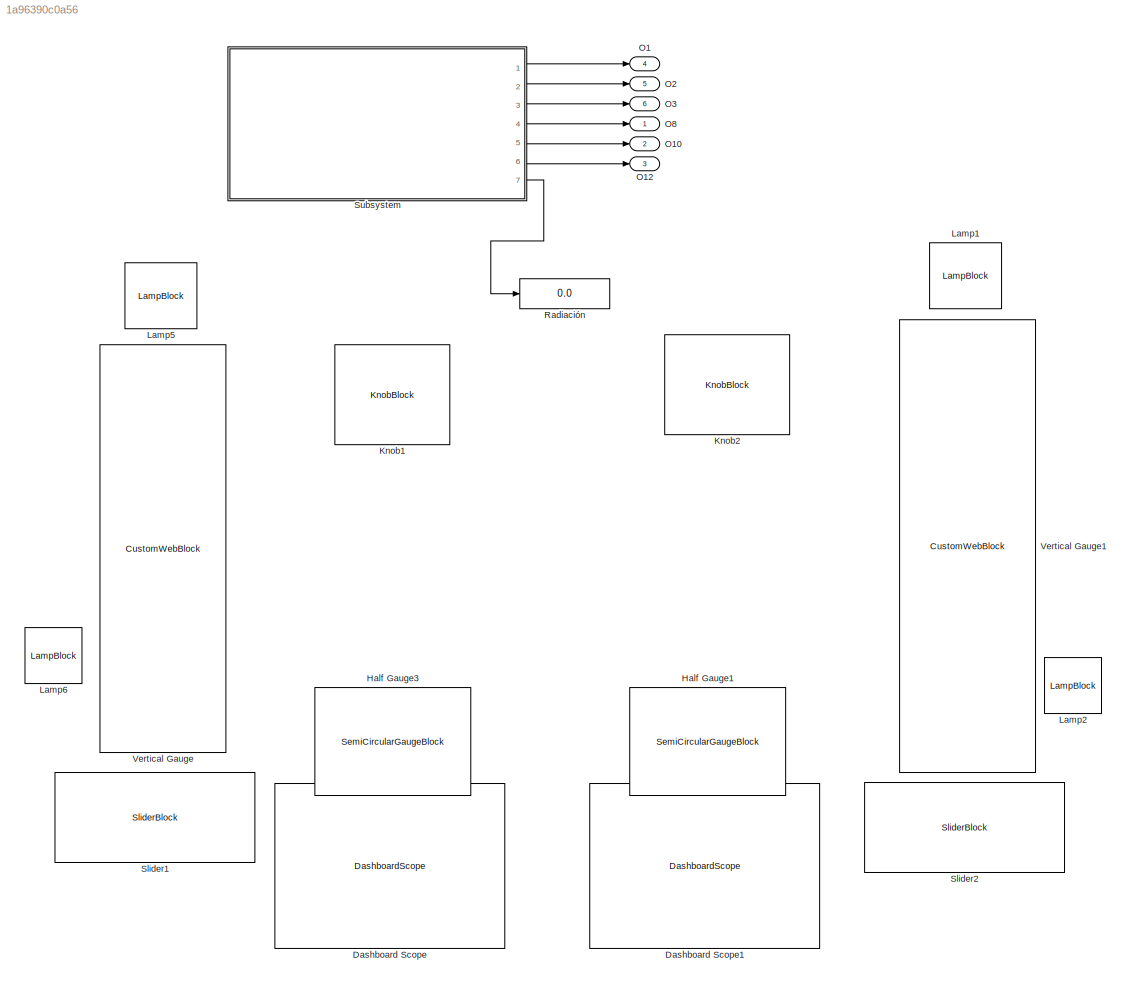
MODEL slx_1a96390c0a56
KIND model
CONFIG AbsTol = auto
CONFIG EnableMultiTasking = on
CONFIG FixedStep = auto
CONFIG MaxStep = auto
CONFIG MinStep = auto
CONFIG RelTol = 1e-3
CONFIG SampleTimeConstraint = Unconstrained
CONFIG Solver = ode45
CONFIG SolverName = ode45
CONFIG StartTime = 0.0
CONFIG StopTime = 10.0
BLOCK [DashboardScope] Dashboard Scope
BLOCK [DashboardScope] Dashboard Scope1
BLOCK [SemiCircularGaugeBlock] Half Gauge1
BLOCK [SemiCircularGaugeBlock] Half Gauge3
  ScaleMax = 14
BLOCK [KnobBlock] Knob1
  ScaleMax = 14
BLOCK [KnobBlock] Knob2
BLOCK [LampBlock] Lamp1
BLOCK [LampBlock] Lamp2
BLOCK [LampBlock] Lamp5
BLOCK [LampBlock] Lamp6
BLOCK [Outport] O1
  Port = 4
BLOCK [Outport] O10
  Port = 2
BLOCK [Outport] O12
  Port = 3
BLOCK [Outport] O2
  Port = 5
BLOCK [Outport] O3
  Port = 6
BLOCK [Outport] O8
BLOCK [Display] Radiación
  Decimation = 1
  Ports = [1]
BLOCK [SliderBlock] Slider1
  ScaleMax = 30
BLOCK [SliderBlock] Slider2
  ScaleMax = 30
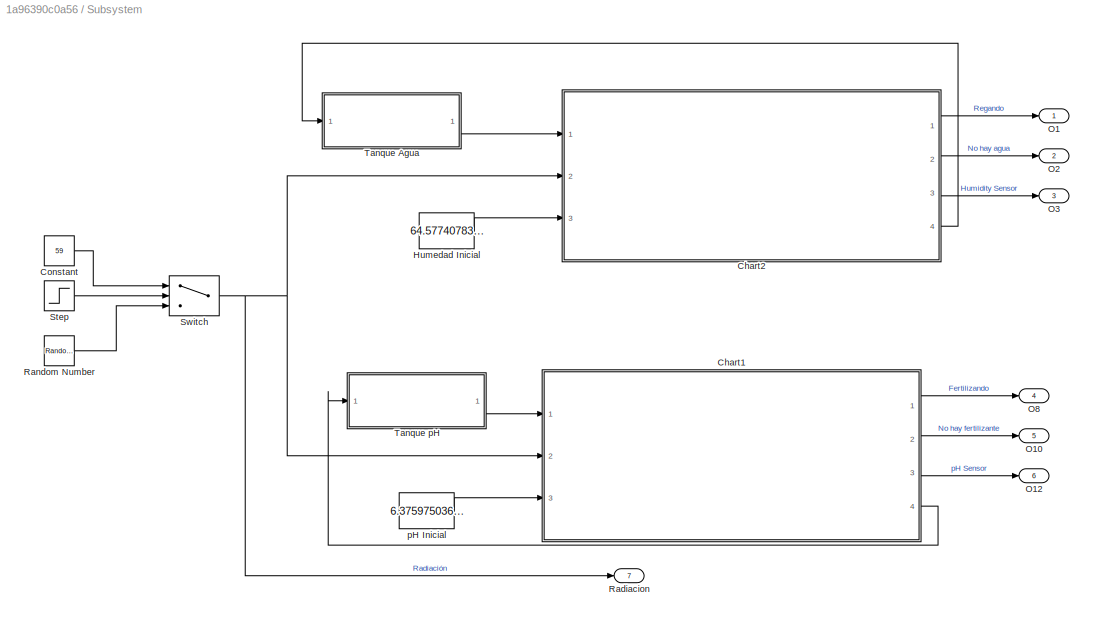
BLOCK [SubSystem] Subsystem
  Ports = [0, 7]
  RequestExecContextInheritance = off
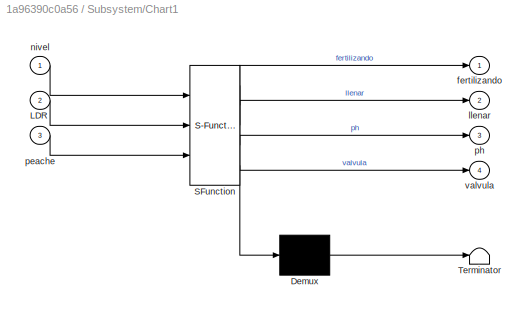
BLOCK [SubSystem] Subsystem/Chart1
  ErrorFcn = Stateflow.Translate.translate
  PermitHierarchicalResolution = ExplicitOnly
  Ports = [3, 4]
  RequestExecContextInheritance = off
  SFBlockType = Chart
  TreatAsAtomicUnit = on
BLOCK [Demux] Subsystem/Chart1/ Demux 
  Outputs = 1
  Ports = [1, 1]
BLOCK [S-Function] Subsystem/Chart1/ SFunction 
  EnableBusSupport = on
  FunctionName = sf_sfun
  PortCounts = [3 5]
  Ports = [3, 5]
  SFcnIsStateOwnerBlock = off
  SFunctionDeploymentMode = off
  Tag = Stateflow S-Function 1
BLOCK [Terminator] Subsystem/Chart1/ Terminator 
BLOCK [Inport] Subsystem/Chart1/LDR
  Port = 2
BLOCK [Outport] Subsystem/Chart1/fertilizando
BLOCK [Outport] Subsystem/Chart1/llenar
  Port = 2
BLOCK [Inport] Subsystem/Chart1/nivel
BLOCK [Inport] Subsystem/Chart1/peache
  Port = 3
BLOCK [Outport] Subsystem/Chart1/ph
  Port = 3
BLOCK [Outport] Subsystem/Chart1/valvula
  Port = 4
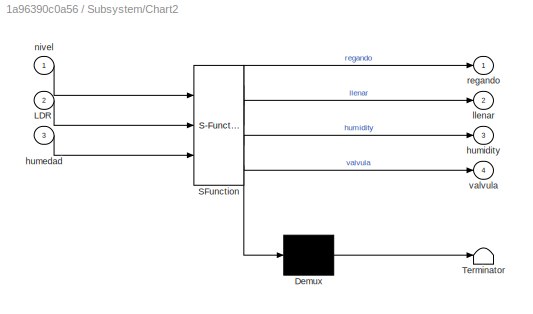
BLOCK [SubSystem] Subsystem/Chart2
  ErrorFcn = Stateflow.Translate.translate
  PermitHierarchicalResolution = ExplicitOnly
  Ports = [3, 4]
  RequestExecContextInheritance = off
  SFBlockType = Chart
  TreatAsAtomicUnit = on
BLOCK [Demux] Subsystem/Chart2/ Demux 
  Outputs = 1
  Ports = [1, 1]
BLOCK [S-Function] Subsystem/Chart2/ SFunction 
  EnableBusSupport = on
  FunctionName = sf_sfun
  PortCounts = [3 5]
  Ports = [3, 5]
  SFcnIsStateOwnerBlock = off
  SFunctionDeploymentMode = off
  Tag = Stateflow S-Function 2
BLOCK [Terminator] Subsystem/Chart2/ Terminator 
BLOCK [Inport] Subsystem/Chart2/LDR
  Port = 2
BLOCK [Inport] Subsystem/Chart2/humedad
  Port = 3
BLOCK [Outport] Subsystem/Chart2/humidity
  Port = 3
BLOCK [Outport] Subsystem/Chart2/llenar
  Port = 2
BLOCK [Inport] Subsystem/Chart2/nivel
BLOCK [Outport] Subsystem/Chart2/regando
BLOCK [Outport] Subsystem/Chart2/valvula
  Port = 4
BLOCK [Constant] Subsystem/Constant
  Value = 59
BLOCK [Constant] Subsystem/Humedad Inicial
  Value = 64.57740783691406
BLOCK [Outport] Subsystem/O1
BLOCK [Outport] Subsystem/O10
  Port = 5
BLOCK [Outport] Subsystem/O12
  Port = 6
BLOCK [Outport] Subsystem/O2
  Port = 2
BLOCK [Outport] Subsystem/O3
  Port = 3
BLOCK [Outport] Subsystem/O8
  Port = 4
BLOCK [Outport] Subsystem/Radiacion
  Port = 7
BLOCK [RandomNumber] Subsystem/Random Number
  Mean = 59
  SampleTime = 15
  Variance = 2
BLOCK [Step] Subsystem/Step
  After = 0
  Before = 1
  SampleTime = 0
  Time = 15
BLOCK [Switch] Subsystem/Switch
  Criteria = u2 ~= 0
  InputSameDT = off
  SaturateOnIntegerOverflow = off
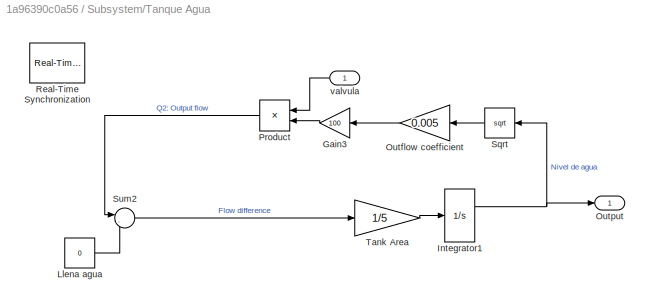
BLOCK [SubSystem] Subsystem/Tanque Agua
  Ports = [1, 1]
  RequestExecContextInheritance = off
BLOCK [Gain] Subsystem/Tanque Agua/Gain3
  Gain = 100
  NameLocation = top
BLOCK [Integrator] Subsystem/Tanque Agua/Integrator1
  LimitOutput = on
  LowerSaturationLimit = 0
  Ports = [1, 2]
  ShowSaturationPort = on
  UpperSaturationLimit = 35
BLOCK [Constant] Subsystem/Tanque Agua/Llena agua
  Value = 0
BLOCK [Gain] Subsystem/Tanque Agua/Outflow coefficient
  Gain = 0.005
  OutDataTypeStr = Inherit: Same as input
  ParamDataTypeStr = Inherit: Same as input
  SaturateOnIntegerOverflow = on
BLOCK [Outport] Subsystem/Tanque Agua/Output
BLOCK [Product] Subsystem/Tanque Agua/Product
  NameLocation = top
  Ports = [2, 1]
BLOCK [Reference] Subsystem/Tanque Agua/Real-Time Synchronization  REF=sldrtlib/Real-Time
Synchronization
  Ports = []
  SourceBlock = sldrtlib/Real-Time\nSynchronization
  SourceProductBaseCode = WT
  SourceType = Simulink Desktop Real-Time Synchronization
BLOCK [Sqrt] Subsystem/Tanque Agua/Sqrt
BLOCK [Sum] Subsystem/Tanque Agua/Sum2
  Inputs = |-+
  NameLocation = top
  Ports = [2, 1]
BLOCK [Gain] Subsystem/Tanque Agua/Tank Area
  Gain = 1/5
  OutDataTypeStr = Inherit: Same as input
  ParamDataTypeStr = Inherit: Same as input
  SaturateOnIntegerOverflow = on
BLOCK [Inport] Subsystem/Tanque Agua/valvula
  NameLocation = top
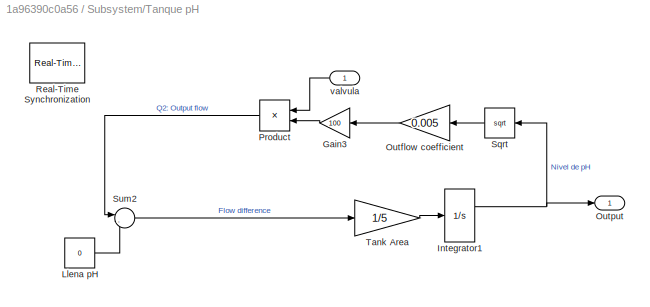
BLOCK [SubSystem] Subsystem/Tanque pH
  Ports = [1, 1]
  RequestExecContextInheritance = off
BLOCK [Gain] Subsystem/Tanque pH/Gain3
  Gain = 100
  NameLocation = top
BLOCK [Integrator] Subsystem/Tanque pH/Integrator1
  LimitOutput = on
  LowerSaturationLimit = 0
  Ports = [1, 2]
  ShowSaturationPort = on
  UpperSaturationLimit = 35
BLOCK [Constant] Subsystem/Tanque pH/Llena pH
  Value = 0
BLOCK [Gain] Subsystem/Tanque pH/Outflow coefficient
  Gain = 0.005
  OutDataTypeStr = Inherit: Same as input
  ParamDataTypeStr = Inherit: Same as input
  SaturateOnIntegerOverflow = on
BLOCK [Outport] Subsystem/Tanque pH/Output
BLOCK [Product] Subsystem/Tanque pH/Product
  NameLocation = top
  Ports = [2, 1]
BLOCK [Reference] Subsystem/Tanque pH/Real-Time Synchronization  REF=sldrtlib/Real-Time
Synchronization
  Ports = []
  SourceBlock = sldrtlib/Real-Time\nSynchronization
  SourceProductBaseCode = WT
  SourceType = Simulink Desktop Real-Time Synchronization
BLOCK [Sqrt] Subsystem/Tanque pH/Sqrt
BLOCK [Sum] Subsystem/Tanque pH/Sum2
  Inputs = |-+
  NameLocation = top
  Ports = [2, 1]
BLOCK [Gain] Subsystem/Tanque pH/Tank Area
  Gain = 1/5
  OutDataTypeStr = Inherit: Same as input
  ParamDataTypeStr = Inherit: Same as input
  SaturateOnIntegerOverflow = on
BLOCK [Inport] Subsystem/Tanque pH/valvula
  NameLocation = top
BLOCK [Constant] Subsystem/pH Inicial
  Value = 6.375975036621094
BLOCK [CustomWebBlock] Vertical Gauge
  Configuration = {"components":[{"name":"LinearScaleComponent","settings":{"bounds":{"max":40,"min":0,"tickInterval":"auto"},"labelColor":[250,245,199],"labelFont":{"font":"Arial","fontSize":12},"labelTransparency":1,"needleImage":{"size":[21,75],"src":"data:image\/svg+xml;base64,PHN2ZyB4bWxucz0iaHR0cDovL3d3dy53My5vcmcvMjAwMC9zdmciIHhtbG5zOnhsaW5rPSJodHRwOi8vd3d3LnczLm9yZy8xOTk5L3hsaW5rIiB2aWV3Qm94PSIwIDAgMjEgNzUi...<+5498ch>
  ShowInitialText = on
BLOCK [CustomWebBlock] Vertical Gauge1
  Configuration = {"components":[{"name":"LinearScaleComponent","settings":{"bounds":{"max":40,"min":0,"tickInterval":"auto"},"labelColor":[250,245,199],"labelFont":{"font":"Arial","fontSize":12},"labelTransparency":1,"needleImage":{"size":[21,75],"src":"data:image\/svg+xml;base64,PHN2ZyB4bWxucz0iaHR0cDovL3d3dy53My5vcmcvMjAwMC9zdmciIHhtbG5zOnhsaW5rPSJodHRwOi8vd3d3LnczLm9yZy8xOTk5L3hsaW5rIiB2aWV3Qm94PSIwIDAgMjEgNzUi...<+5498ch>
  ShowInitialText = on
LINE Subsystem/Chart1:1 -> Subsystem/O8:1
LINE Subsystem/Chart1:2 -> Subsystem/O10:1
LINE Subsystem/Chart1:3 -> Subsystem/O12:1
LINE Subsystem/Chart1:4 -> Subsystem/Tanque pH:1
LINE Subsystem/Chart2:1 -> Subsystem/O1:1
LINE Subsystem/Chart2:2 -> Subsystem/O2:1
LINE Subsystem/Chart2:3 -> Subsystem/O3:1
LINE Subsystem/Chart2:4 -> Subsystem/Tanque Agua:1
LINE Subsystem/Constant:1 -> Subsystem/Switch:1
LINE Subsystem/Humedad Inicial:1 -> Subsystem/Chart2:3
LINE Subsystem/Random Number:1 -> Subsystem/Switch:3
LINE Subsystem/Step:1 -> Subsystem/Switch:2
NET Subsystem/Switch:1 -> Subsystem/Chart1:2, Subsystem/Chart2:2, Subsystem/Radiacion:1
LINE Subsystem/Tanque Agua/Gain3:1 -> Subsystem/Tanque Agua/Product:2
NET Subsystem/Tanque Agua/Integrator1:1 -> Subsystem/Tanque Agua/Output:1, Subsystem/Tanque Agua/Sqrt:1
LINE Subsystem/Tanque Agua/Llena agua:1 -> Subsystem/Tanque Agua/Sum2:2
LINE Subsystem/Tanque Agua/Outflow coefficient:1 -> Subsystem/Tanque Agua/Gain3:1
LINE Subsystem/Tanque Agua/Product:1 -> Subsystem/Tanque Agua/Sum2:1
LINE Subsystem/Tanque Agua/Sqrt:1 -> Subsystem/Tanque Agua/Outflow coefficient:1
LINE Subsystem/Tanque Agua/Sum2:1 -> Subsystem/Tanque Agua/Tank Area:1
LINE Subsystem/Tanque Agua/Tank Area:1 -> Subsystem/Tanque Agua/Integrator1:1
LINE Subsystem/Tanque Agua/valvula:1 -> Subsystem/Tanque Agua/Product:1
LINE Subsystem/Tanque Agua:1 -> Subsystem/Chart2:1
LINE Subsystem/Tanque pH/Gain3:1 -> Subsystem/Tanque pH/Product:2
NET Subsystem/Tanque pH/Integrator1:1 -> Subsystem/Tanque pH/Output:1, Subsystem/Tanque pH/Sqrt:1
LINE Subsystem/Tanque pH/Llena pH:1 -> Subsystem/Tanque pH/Sum2:2
LINE Subsystem/Tanque pH/Outflow coefficient:1 -> Subsystem/Tanque pH/Gain3:1
LINE Subsystem/Tanque pH/Product:1 -> Subsystem/Tanque pH/Sum2:1
LINE Subsystem/Tanque pH/Sqrt:1 -> Subsystem/Tanque pH/Outflow coefficient:1
LINE Subsystem/Tanque pH/Sum2:1 -> Subsystem/Tanque pH/Tank Area:1
LINE Subsystem/Tanque pH/Tank Area:1 -> Subsystem/Tanque pH/Integrator1:1
LINE Subsystem/Tanque pH/valvula:1 -> Subsystem/Tanque pH/Product:1
LINE Subsystem/Tanque pH:1 -> Subsystem/Chart1:1
LINE Subsystem/pH Inicial:1 -> Subsystem/Chart1:3
LINE Subsystem:1 -> O1:1
LINE Subsystem:2 -> O2:1
LINE Subsystem:3 -> O3:1
LINE Subsystem:4 -> O8:1
LINE Subsystem:5 -> O10:1
LINE Subsystem:6 -> O12:1
LINE Subsystem:7 -> Radiación:1
note: NET lines group one-source signal fan-out (src -> all destinations, sorted); 1:1 wires keep LINE
CHART Subsystem/Chart1 states=9 transitions=24
  STATE_LABEL 'INICIO\nentry:\ncod=0;\nph=peache;\nfertilizando=0;\nllenar=0;\nduring:\nph=ph-0.05\nvalvula=0\nexit:\ncod=1;'
  STATE_LABEL 'FERTILIZAR\nentry:\ncod=1;\nfertilizando=1;\nllenar=0;\nduring:\nph=ph+0.1\nvalvula=1\nexit:\ncod=2;'
  STATE_LABEL 'PH\nentry:\nfertilizando=0;\nllenar=1;\nduring:\nph=0\nvalvula=0'
  STATE_LABEL 'PH_BAJA_LDR\nentry:\ncod=0;\nfertilizando=0;\nllenar=0;\nduring:\nph=ph-0.05\nvalvula=0\nexit:\ncod=1;'
  STATE_LABEL 'TANQUE_VACIO\nentry:\nfertilizando=0;\nllenar=1;\nduring:\nph=ph-0.05\nvalvula=0'
  STATE_LABEL 'PH_9_BAJA\nentry:\ncod=2;\nfertilizando=0;\nllenar=0;\nduring:\nph=ph-0.05\nvalvula=0\nexit:\ncod=1;'
  STATE_LABEL 'LLENAR_TANQUE\nentry:\nfertilizando=0;\nllenar=1;\nduring:\nph=ph-0.05\nvalvula=0\nexit:\ncod=1;\n'
  STATE_LABEL 'PH1\nph=0\nvalvula=0'
  STATE_LABEL 'APAGAR\nentry:\nfertilizando=0;\nllenar=0;\nduring:\nvalvula=0\nph=ph-0.05'
CHART Subsystem/Chart2 states=10 transitions=27
  STATE_LABEL 'INICIO\nentry:\ncod=0;\nhumidity=humedad;\nregando=0;\nllenar=0;\nduring:\nhumidity=humidity-0.01\nvalvula=0\nexit:\ncod=1;'
  STATE_LABEL 'HUMEDAD\nentry:\nregando=0;\nllenar=1;\nduring:\nhumidity=0\nvalvula=0'
  STATE_LABEL 'TANQUE_VACIO\nentry:\nregando=0;\nllenar=1;\nduring:\nhumidity=humidity-0.01\nvalvula=0'
  STATE_LABEL 'HUME_BAJA_LDR\nentry:\ncod=0;\nregando=0;\nllenar=0;\nduring:\nhumidity=humidity-0.1\nvalvula=0\nexit:\ncod=1;'
  STATE_LABEL 'TANQUE_LLENO\nentry:\nllenar=0;\nduring:\nhumidity=humidity-0.01'
  STATE_LABEL 'REGAR\nentry:\ncod=1;\nregando=1;\nllenar=0;\nduring:\nhumidity=humidity+0.1\nvalvula=1\nexit:\ncod=2;'
  STATE_LABEL 'APAGAR\nentry:\nregando=0;\nllenar=0;\nduring:\nvalvula=0\nhumidity=humidity-0.1'
  STATE_LABEL 'HUMEDAD2\nhumidity=0\nvalvula=0'
  STATE_LABEL 'LLENAR_TANQUE\nentry:\nregando=0;\nllenar=1;\nduring:\nhumidity=humidity-0.1\nvalvula=0\nexit:\ncod=1;\n'
  STATE_LABEL 'HUME_80_BAJA\nentry:\ncod=2;\nregando=0;\nllenar=0;\nduring:\nhumidity=humidity-0.1\nvalvula=0\nexit:\ncod=1;'
CHART  states=0 transitions=0
CHART  states=0 transitions=0
